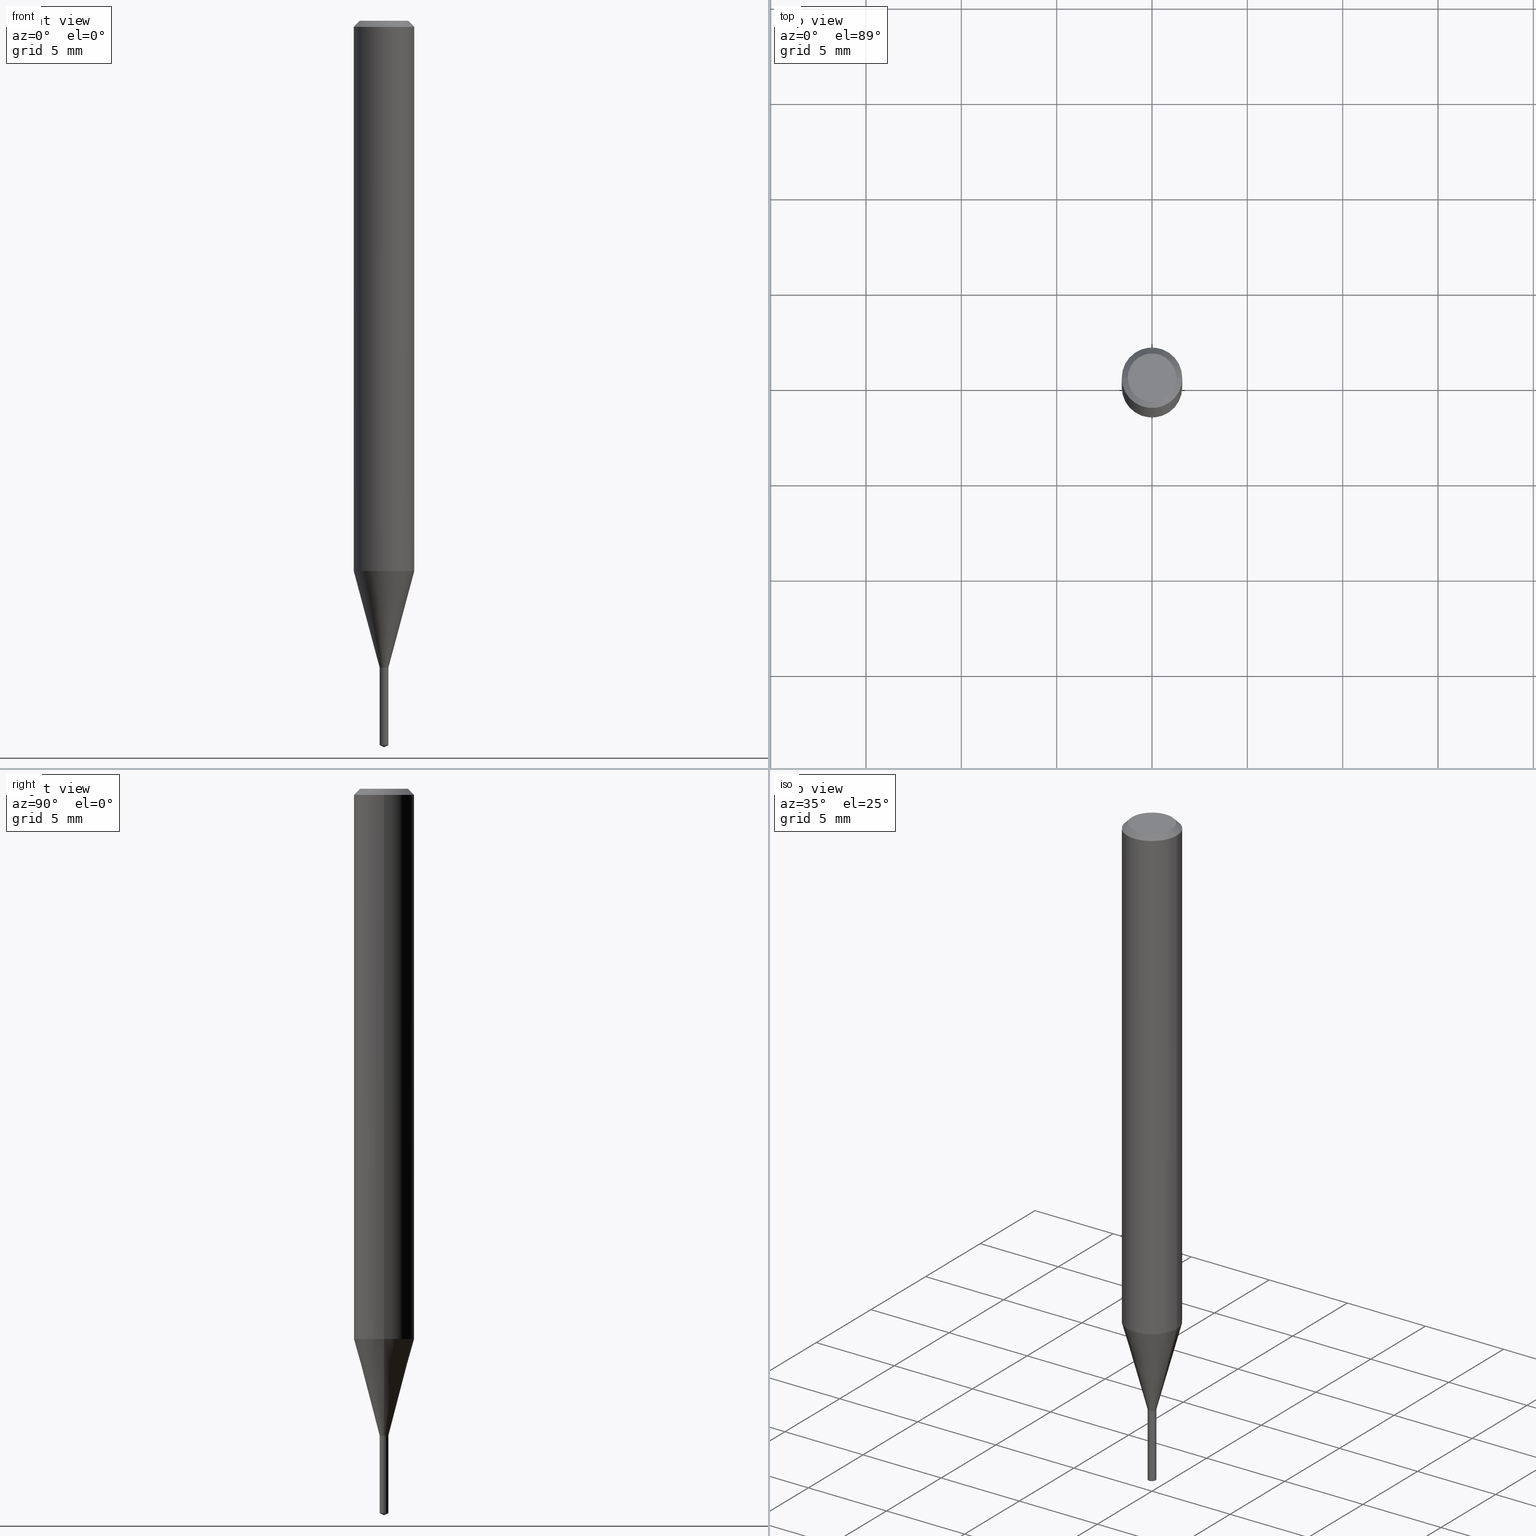
[diagram: canonical four-view strip — front | top / right | iso, engineering-drawing reading convention]
A machine part, canonical four-view strip (front | top / right | iso — engineering-drawing reading convention). The complete STEP part file that produces these views, byte-faithful:
ISO-10303-21;
HEADER;
FILE_DESCRIPTION (( 'STEP AP203' ),
    '1' );
FILE_NAME ('07121.STEP',
    '2024-04-23T19:34:49',
    ( '' ),
    ( '' ),
    'SwSTEP 2.0',
    'SolidWorks 2023',
    '' );
FILE_SCHEMA (( 'CONFIG_CONTROL_DESIGN' ));
ENDSEC;

DATA;
#1 = ADVANCED_FACE ( 'NONE', ( #485 ), #316, .F. ) ;
#2 = FACE_OUTER_BOUND ( 'NONE', #379, .T. ) ;
#3 = CARTESIAN_POINT ( 'NONE',  ( 2.946789911453089913E-29, -4.207235013305990839E-15, -1.205000000000000071 ) ) ;
#4 = ORIENTED_EDGE ( 'NONE', *, *, #130, .T. ) ;
#5 = AXIS2_PLACEMENT_3D ( 'NONE', #149, #284, #111 ) ;
#6 = ORIENTED_EDGE ( 'NONE', *, *, #41, .T. ) ;
#7 = CIRCLE ( 'NONE', #129, 0.06250000000000000000 ) ;
#8 = COORDINATED_UNIVERSAL_TIME_OFFSET ( 5, 0, .BEHIND. ) ;
#9 = DIRECTION ( 'NONE',  ( -2.442064184349959249E-29, 3.496356951090160448E-15, 1.000000000000000000 ) ) ;
#10 = ADVANCED_FACE ( 'NONE', ( #369 ), #194, .T. ) ;
#11 = DIRECTION ( 'NONE',  ( 1.000000000000000000, -6.982962677686266711E-15, 0.000000000000000000 ) ) ;
#12 = DIRECTION ( 'NONE',  ( 0.7071067811865452413, -7.319954787623248157E-15, -0.7071067811865497932 ) ) ;
#13 = DIMENSIONAL_EXPONENTS ( 1.000000000000000000, 0.000000000000000000, 0.000000000000000000, 0.000000000000000000, 0.000000000000000000, 0.000000000000000000, 0.000000000000000000 ) ;
#14 = VECTOR ( 'NONE', #25, 39.37007874015748143 ) ;
#15 = AXIS2_PLACEMENT_3D ( 'NONE', #189, #237, #106 ) ;
#16 = APPROVAL ( #17, 'UNSPECIFIED' ) ;
#17 = APPROVAL_STATUS ( 'not_yet_approved' ) ;
#18 = MANIFOLD_SOLID_BREP ( 'Body-Move/Copy2[2]', #282 ) ;
#19 = AXIS2_PLACEMENT_3D ( 'NONE', #390, #42, #211 ) ;
#20 = LINE ( 'NONE', #403, #361 ) ;
#21 = DIRECTION ( 'NONE',  ( 1.000000000000000000, -6.982962677686270655E-15, 0.000000000000000000 ) ) ;
#22 = CONICAL_SURFACE ( 'NONE', #381, 0.06250000000000000000, 0.7853981633974450594 ) ;
#23 = EDGE_CURVE ( 'NONE', #39, #208, #128, .T. ) ;
#24 = FACE_OUTER_BOUND ( 'NONE', #423, .T. ) ;
#25 = DIRECTION ( 'NONE',  ( -2.442064184349959249E-29, 3.496356951090160842E-15, 1.000000000000000000 ) ) ;
#26 = LINE ( 'NONE', #370, #463 ) ;
#27 = DIRECTION ( 'NONE',  ( -2.445468806185136597E-29, 3.491481338843145583E-15, 1.000000000000000000 ) ) ;
#28 = ORIENTED_EDGE ( 'NONE', *, *, #421, .F. ) ;
#29 = DIRECTION ( 'NONE',  ( 1.000000000000000000, -6.982962677686225690E-15, 0.000000000000000000 ) ) ;
#30 = CARTESIAN_POINT ( 'NONE',  ( 0.000000000000000000, 0.000000000000000000, 0.000000000000000000 ) ) ;
#31 = ORIENTED_EDGE ( 'NONE', *, *, #171, .T. ) ;
#32 = AXIS2_PLACEMENT_3D ( 'NONE', #371, #27, #482 ) ;
#33 = CIRCLE ( 'NONE', #221, 0.008999999999999999320 ) ;
#34 = DIRECTION ( 'NONE',  ( -2.442064184349959249E-29, 3.496356951090160842E-15, 1.000000000000000000 ) ) ;
#35 = ORIENTED_EDGE ( 'NONE', *, *, #130, .F. ) ;
#36 = CALENDAR_DATE ( 2024, 23, 4 ) ;
#37 = CARTESIAN_POINT ( 'NONE',  ( 2.946789911453089913E-29, -4.207235013305990839E-15, -1.205000000000000071 ) ) ;
#38 = DIRECTION ( 'NONE',  ( -2.445468806185136877E-29, 3.491481338843145188E-15, 1.000000000000000000 ) ) ;
#39 = VERTEX_POINT ( 'NONE', #179 ) ;
#40 = LINE ( 'NONE', #153, #251 ) ;
#41 = EDGE_CURVE ( 'NONE', #55, #219, #264, .T. ) ;
#42 = DIRECTION ( 'NONE',  ( -2.445468806185136597E-29, 3.491481338843145583E-15, 1.000000000000000000 ) ) ;
#43 = EDGE_LOOP ( 'NONE', ( #107, #98, #70, #96 ) ) ;
#44 = VECTOR ( 'NONE', #484, 39.37007874015748143 ) ;
#45 = APPLICATION_PROTOCOL_DEFINITION ( 'international standard', 'config_control_design', 1994, #146 ) ;
#46 = CC_DESIGN_DATE_AND_TIME_ASSIGNMENT ( #176, #332, ( #399 ) ) ;
#47 = CARTESIAN_POINT ( 'NONE',  ( 6.394884621844563230E-17, 0.008999999999995792616, -1.205000000000000071 ) ) ;
#48 = PERSON_AND_ORGANIZATION ( #122, #83 ) ;
#49 = CIRCLE ( 'NONE', #114, 0.008499999999999998876 ) ;
#50 = DATE_TIME_ROLE ( 'creation_date' ) ;
#51 = LOCAL_TIME ( 15, 34, 49.00000000000000000, #8 ) ;
#52 = EDGE_CURVE ( 'NONE', #208, #39, #451, .T. ) ;
#53 = CARTESIAN_POINT ( 'NONE',  ( 0.008999999999999999320, -4.726767436525850023E-15, -1.335800000000000098 ) ) ;
#54 = VERTEX_POINT ( 'NONE', #450 ) ;
#55 = VERTEX_POINT ( 'NONE', #102 ) ;
#56 = ADVANCED_FACE ( 'NONE', ( #78 ), #326, .T. ) ;
#57 = APPROVAL_DATE_TIME ( #444, #346 ) ;
#58 = CARTESIAN_POINT ( 'NONE',  ( -0.008999999999999999320, -4.370756176313212753E-15, -1.335800000000000098 ) ) ;
#59 = DIRECTION ( 'NONE',  ( 1.000000000000000000, -6.982962677686266711E-15, 4.876176775795935232E-29 ) ) ;
#60 = AXIS2_PLACEMENT_3D ( 'NONE', #178, #368, #252 ) ;
#61 = FACE_OUTER_BOUND ( 'NONE', #427, .T. ) ;
#62 = ORIENTED_EDGE ( 'NONE', *, *, #398, .T. ) ;
#63 = DIRECTION ( 'NONE',  ( -0.2588190451025280114, 5.211531920934590485E-15, 0.9659258262890662028 ) ) ;
#64 = ORIENTED_EDGE ( 'NONE', *, *, #472, .T. ) ;
#65 = CARTESIAN_POINT ( 'NONE',  ( 3.663096276524938454E-29, -5.244535426635240672E-15, -1.500000000000000222 ) ) ;
#66 = LINE ( 'NONE', #481, #44 ) ;
#67 = ORIENTED_EDGE ( 'NONE', *, *, #89, .T. ) ;
#68 = EDGE_CURVE ( 'NONE', #142, #109, #406, .T. ) ;
#69 = DIRECTION ( 'NONE',  ( -6.982962677686266711E-15, -1.000000000000000000, 3.520397390770291759E-15 ) ) ;
#70 = ORIENTED_EDGE ( 'NONE', *, *, #117, .T. ) ;
#71 = PRODUCT_DEFINITION_SHAPE ( 'NONE', 'NONE',  #139 ) ;
#72 = DIRECTION ( 'NONE',  ( -2.445468806185136597E-29, 3.491481338843145583E-15, 1.000000000000000000 ) ) ;
#73 = AXIS2_PLACEMENT_3D ( 'NONE', #385, #206, #351 ) ;
#74 = DIRECTION ( 'NONE',  ( -1.000000000000000000, 6.982962677686266711E-15, 0.000000000000000000 ) ) ;
#75 = ORIENTED_EDGE ( 'NONE', *, *, #421, .T. ) ;
#76 = CYLINDRICAL_SURFACE ( 'NONE', #355, 0.009000000000000001055 ) ;
#77 = DIRECTION ( 'NONE',  ( -2.445468806185136597E-29, 3.491481338843145583E-15, 1.000000000000000000 ) ) ;
#78 = FACE_OUTER_BOUND ( 'NONE', #116, .T. ) ;
#79 = DIRECTION ( 'NONE',  ( -6.982962677686265133E-15, -1.000000000000000000, 0.000000000000000000 ) ) ;
#80 = DIRECTION ( 'NONE',  ( -2.445468806185136597E-29, 3.491481338843145583E-15, 1.000000000000000000 ) ) ;
#81 = ORIENTED_EDGE ( 'NONE', *, *, #253, .T. ) ;
#82 = PERSON_AND_ORGANIZATION_ROLE ( 'design_owner' ) ;
#83 = ORGANIZATION ( 'UNSPECIFIED', 'UNSPECIFIED', '' ) ;
#84 =( CONVERSION_BASED_UNIT ( 'INCH', #432 ) LENGTH_UNIT ( ) NAMED_UNIT ( #13 ) );
#85 = EDGE_CURVE ( 'NONE', #383, #219, #470, .T. ) ;
#86 = CC_DESIGN_PERSON_AND_ORGANIZATION_ASSIGNMENT ( #48, #82, ( #359 ) ) ;
#87 = ORIENTED_EDGE ( 'NONE', *, *, #459, .F. ) ;
#88 = VECTOR ( 'NONE', #378, 39.37007874015748143 ) ;
#89 = EDGE_CURVE ( 'NONE', #55, #157, #255, .T. ) ;
#90 = ORIENTED_EDGE ( 'NONE', *, *, #398, .F. ) ;
#91 = AXIS2_PLACEMENT_3D ( 'NONE', #319, #386, #69 ) ;
#92 = CONICAL_SURFACE ( 'NONE', #329, 84.42940631927822892, 1.134464013796333548 ) ;
#93 = DIRECTION ( 'NONE',  ( -2.445468806185136597E-29, 3.491481338843145583E-15, 1.000000000000000000 ) ) ;
#94 = EDGE_CURVE ( 'NONE', #219, #383, #181, .T. ) ;
#95 = DIRECTION ( 'NONE',  ( -2.445468806185136597E-29, 3.491481338843145583E-15, 1.000000000000000000 ) ) ;
#96 = ORIENTED_EDGE ( 'NONE', *, *, #123, .F. ) ;
#97 = CARTESIAN_POINT ( 'NONE',  ( 2.945567177049997112E-29, -4.205489272636569336E-15, -1.204500000000000126 ) ) ;
#98 = ORIENTED_EDGE ( 'NONE', *, *, #322, .T. ) ;
#99 = CARTESIAN_POINT ( 'NONE',  ( 3.056836007731441415E-31, -4.364351673553961684E-17, -0.01250000000000008396 ) ) ;
#100 = PERSON_AND_ORGANIZATION ( #122, #83 ) ;
#101 = DIRECTION ( 'NONE',  ( -2.445468806185136597E-29, 3.491481338843145583E-15, 1.000000000000000000 ) ) ;
#102 = CARTESIAN_POINT ( 'NONE',  ( -6.284666409913983768E-17, -0.009000000000005224307, -1.495803231076605400 ) ) ;
#103 = ORIENTED_EDGE ( 'NONE', *, *, #439, .F. ) ;
#104 = EDGE_CURVE ( 'NONE', #142, #375, #285, .T. ) ;
#105 = DIRECTION ( 'NONE',  ( 6.439704144417082418E-15, 0.9063077870366594846, 0.4226182617406786801 ) ) ;
#106 = DIRECTION ( 'NONE',  ( 1.000000000000000000, 0.000000000000000000, 0.000000000000000000 ) ) ;
#107 = ORIENTED_EDGE ( 'NONE', *, *, #132, .F. ) ;
#108 = DIRECTION ( 'NONE',  ( 1.000000000000000000, -6.982962677686279332E-15, 0.000000000000000000 ) ) ;
#109 = VERTEX_POINT ( 'NONE', #286 ) ;
#110 = ORIENTED_EDGE ( 'NONE', *, *, #330, .F. ) ;
#111 = DIRECTION ( 'NONE',  ( 1.000000000000000000, -6.982962677686225690E-15, 0.000000000000000000 ) ) ;
#112 = ORIENTED_EDGE ( 'NONE', *, *, #266, .T. ) ;
#113 = VECTOR ( 'NONE', #356, 39.37007874015748143 ) ;
#114 = AXIS2_PLACEMENT_3D ( 'NONE', #197, #267, #345 ) ;
#115 = LINE ( 'NONE', #456, #88 ) ;
#116 = EDGE_LOOP ( 'NONE', ( #31, #420, #297, #331 ) ) ;
#117 = EDGE_CURVE ( 'NONE', #140, #54, #354, .T. ) ;
#118 = ORIENTED_EDGE ( 'NONE', *, *, #170, .T. ) ;
#119 = ADVANCED_FACE ( 'NONE', ( #317 ), #320, .T. ) ;
#120 = APPLICATION_CONTEXT ( 'configuration controlled 3d designs of mechanical parts and assemblies' ) ;
#121 = CARTESIAN_POINT ( 'NONE',  ( -0.008499999999999998876, -4.146838880766382664E-15, -1.205000000000000071 ) ) ;
#122 = PERSON ( 'UNSPECIFIED', 'UNSPECIFIED', 'UNSPECIFIED', ('UNSPECIFIED'), ('UNSPECIFIED'), ('UNSPECIFIED') ) ;
#123 = EDGE_CURVE ( 'NONE', #299, #54, #40, .T. ) ;
#124 = DIRECTION ( 'NONE',  ( -2.445468806185136597E-29, 3.491481338843145583E-15, 1.000000000000000000 ) ) ;
#125 =( LENGTH_UNIT ( ) NAMED_UNIT ( * ) SI_UNIT ( $, .METRE. ) );
#126 = CC_DESIGN_APPROVAL ( #16, ( #358 ) ) ;
#127 = DATE_AND_TIME ( #204, #51 ) ;
#128 = CIRCLE ( 'NONE', #216, 0.06250000000000013878 ) ;
#129 = AXIS2_PLACEMENT_3D ( 'NONE', #468, #465, #11 ) ;
#130 = EDGE_CURVE ( 'NONE', #109, #142, #334, .T. ) ;
#131 = EDGE_LOOP ( 'NONE', ( #35, #62, #118, #405 ) ) ;
#132 = EDGE_CURVE ( 'NONE', #229, #299, #380, .T. ) ;
#133 = FACE_OUTER_BOUND ( 'NONE', #454, .T. ) ;
#134 = AXIS2_PLACEMENT_3D ( 'NONE', #30, #409, #59 ) ;
#135 = VECTOR ( 'NONE', #63, 39.37007874015748854 ) ;
#136 = ADVANCED_BREP_SHAPE_REPRESENTATION ( '07121', ( #174, #18, #15 ), #298 ) ;
#137 = DIRECTION ( 'NONE',  ( 0.2588190451025280114, 1.565188264969568522E-15, 0.9659258262890662028 ) ) ;
#138 = ORIENTED_EDGE ( 'NONE', *, *, #287, .F. ) ;
#139 = PRODUCT_DEFINITION ( 'UNKNOWN', '', #358, #413 ) ;
#140 = VERTEX_POINT ( 'NONE', #313 ) ;
#141 = DIRECTION ( 'NONE',  ( -2.445468806185136877E-29, 3.491481338843145188E-15, 1.000000000000000000 ) ) ;
#142 = VERTEX_POINT ( 'NONE', #462 ) ;
#143 = PERSON_AND_ORGANIZATION ( #122, #83 ) ;
#144 = CARTESIAN_POINT ( 'NONE',  ( 2.946789911453089913E-29, -4.207235013305990839E-15, -1.205000000000000071 ) ) ;
#145 = CARTESIAN_POINT ( 'NONE',  ( 0.000000000000000000, 0.000000000000000000, 0.000000000000000000 ) ) ;
#146 = APPLICATION_CONTEXT ( 'configuration controlled 3d designs of mechanical parts and assemblies' ) ;
#147 = VECTOR ( 'NONE', #105, 39.37007874015748143 ) ;
#148 = DIRECTION ( 'NONE',  ( -1.000000000000000000, 6.982962677686266711E-15, 0.000000000000000000 ) ) ;
#149 = CARTESIAN_POINT ( 'NONE',  ( 3.266657231302105794E-29, -4.663920772426673528E-15, -1.335800000000000098 ) ) ;
#150 = VERTEX_POINT ( 'NONE', #241 ) ;
#151 = COORDINATED_UNIVERSAL_TIME_OFFSET ( 5, 0, .BEHIND. ) ;
#152 = DIRECTION ( 'NONE',  ( 1.000000000000000000, -6.982962677686266711E-15, 4.876176775795935793E-29 ) ) ;
#153 = CARTESIAN_POINT ( 'NONE',  ( 0.008999999999999999320, -6.284666409917639645E-17, 4.388559098216341408E-31 ) ) ;
#154 = EDGE_LOOP ( 'NONE', ( #67, #278, #163, #310 ) ) ;
#155 = CARTESIAN_POINT ( 'NONE',  ( 3.266657231302105794E-29, -4.663920772426673528E-15, -1.335800000000000098 ) ) ;
#156 = FACE_OUTER_BOUND ( 'NONE', #162, .T. ) ;
#157 = VERTEX_POINT ( 'NONE', #207 ) ;
#158 = AXIS2_PLACEMENT_3D ( 'NONE', #195, #77, #248 ) ;
#159 = CARTESIAN_POINT ( 'NONE',  ( 0.06250000000000000000, -4.800786840909313294E-16, -0.01250000000000008396 ) ) ;
#160 = AXIS2_PLACEMENT_3D ( 'NONE', #412, #364, #340 ) ;
#161 = EDGE_CURVE ( 'NONE', #39, #375, #115, .T. ) ;
#162 = EDGE_LOOP ( 'NONE', ( #226, #4 ) ) ;
#163 = ORIENTED_EDGE ( 'NONE', *, *, #94, .F. ) ;
#164 = DIRECTION ( 'NONE',  ( -2.438088387897960049E-29, 3.491481338843145188E-15, 1.000000000000000000 ) ) ;
#165 = LINE ( 'NONE', #121, #168 ) ;
#166 = CARTESIAN_POINT ( 'NONE',  ( -8.265746106709734507E-48, 1.180129479067563789E-33, 3.380025165646692144E-19 ) ) ;
#167 = CIRCLE ( 'NONE', #158, 0.06250000000000000000 ) ;
#168 = VECTOR ( 'NONE', #389, 39.37007874015748143 ) ;
#169 = UNCERTAINTY_MEASURE_WITH_UNIT (LENGTH_MEASURE( 1.000000000000000082E-05 ), #84, 'distance_accuracy_value', 'NONE');
#170 = EDGE_CURVE ( 'NONE', #372, #375, #167, .T. ) ;
#171 = EDGE_CURVE ( 'NONE', #299, #229, #435, .T. ) ;
#172 = AXIS2_PLACEMENT_3D ( 'NONE', #166, #72, #458 ) ;
#173 = EDGE_CURVE ( 'NONE', #157, #383, #490, .T. ) ;
#174 = MANIFOLD_SOLID_BREP ( 'Body-Move/Copy2[1]', #260 ) ;
#175 = EDGE_LOOP ( 'NONE', ( #103, #112, #353 ) ) ;
#176 = DATE_AND_TIME ( #223, #422 ) ;
#177 = ADVANCED_FACE ( 'NONE', ( #156 ), #198, .F. ) ;
#178 = CARTESIAN_POINT ( 'NONE',  ( 2.946789911453089913E-29, -4.207235013305990839E-15, -1.205000000000000071 ) ) ;
#179 = CARTESIAN_POINT ( 'NONE',  ( -0.06250000000000013878, -3.522705924938723995E-15, -1.136135281795070506 ) ) ;
#180 = ORIENTED_EDGE ( 'NONE', *, *, #266, .F. ) ;
#181 = CIRCLE ( 'NONE', #73, 0.008999999999999999320 ) ;
#182 = AXIS2_PLACEMENT_3D ( 'NONE', #193, #93, #476 ) ;
#183 = APPROVAL_PERSON_ORGANIZATION ( #397, #16, #294 ) ;
#184 = DIRECTION ( 'NONE',  ( 1.000000000000000000, -6.982962677686279332E-15, 0.000000000000000000 ) ) ;
#185 = VERTEX_POINT ( 'NONE', #245 ) ;
#186 = DIRECTION ( 'NONE',  ( -6.982962677686266711E-15, -1.000000000000000000, 0.000000000000000000 ) ) ;
#187 = PERSON_AND_ORGANIZATION ( #122, #83 ) ;
#188 = CARTESIAN_POINT ( 'NONE',  ( 3.671373364528048644E-29, -5.232785201119936018E-15, -1.500000000000000222 ) ) ;
#189 = CARTESIAN_POINT ( 'NONE',  ( 0.000000000000000000, 0.000000000000000000, 0.000000000000000000 ) ) ;
#190 = ORIENTED_EDGE ( 'NONE', *, *, #322, .F. ) ;
#191 = ADVANCED_FACE ( 'NONE', ( #382 ), #349, .T. ) ;
#192 = DIRECTION ( 'NONE',  ( -2.445468806185136597E-29, 3.491481338843145583E-15, 1.000000000000000000 ) ) ;
#193 = CARTESIAN_POINT ( 'NONE',  ( 0.000000000000000000, 0.000000000000000000, 0.000000000000000000 ) ) ;
#194 = CYLINDRICAL_SURFACE ( 'NONE', #244, 0.06250000000000006939 ) ;
#195 = CARTESIAN_POINT ( 'NONE',  ( 3.056836007731441415E-31, -4.364351673553961684E-17, -0.01250000000000008396 ) ) ;
#196 = ORIENTED_EDGE ( 'NONE', *, *, #68, .F. ) ;
#197 = CARTESIAN_POINT ( 'NONE',  ( 2.946789911453089913E-29, -4.207235013305990839E-15, -1.205000000000000071 ) ) ;
#198 = PLANE ( 'NONE',  #209 ) ;
#199 = ORIENTED_EDGE ( 'NONE', *, *, #259, .T. ) ;
#200 = APPROVAL_DATE_TIME ( #323, #367 ) ;
#201 = DIRECTION ( 'NONE',  ( -2.442064184349959249E-29, 3.496356951090160448E-15, 1.000000000000000000 ) ) ;
#202 = DIRECTION ( 'NONE',  ( -1.000000000000000000, 6.982962677686265922E-15, -4.876176775795935793E-29 ) ) ;
#203 = ORIENTED_EDGE ( 'NONE', *, *, #104, .T. ) ;
#204 = CALENDAR_DATE ( 2024, 23, 4 ) ;
#205 = CC_DESIGN_PERSON_AND_ORGANIZATION_ASSIGNMENT ( #143, #308, ( #399 ) ) ;
#206 = DIRECTION ( 'NONE',  ( -2.442064184349959249E-29, 3.496356951090160448E-15, 1.000000000000000000 ) ) ;
#207 = CARTESIAN_POINT ( 'NONE',  ( 6.394884621844558300E-17, 0.008999999999994777802, -1.495803231076605400 ) ) ;
#208 = VERTEX_POINT ( 'NONE', #309 ) ;
#209 = AXIS2_PLACEMENT_3D ( 'NONE', #280, #419, #202 ) ;
#210 = AXIS2_PLACEMENT_3D ( 'NONE', #3, #296, #300 ) ;
#211 = DIRECTION ( 'NONE',  ( 1.000000000000000000, -6.982962677686225690E-15, 0.000000000000000000 ) ) ;
#212 = ORIENTED_EDGE ( 'NONE', *, *, #295, .T. ) ;
#213 = CARTESIAN_POINT ( 'NONE',  ( -0.06250000000000000000, -1.561130115912099878E-15, -0.01250000000000008396 ) ) ;
#214 = PRODUCT_RELATED_PRODUCT_CATEGORY ( 'detail', '', ( #359 ) ) ;
#215 =( NAMED_UNIT ( * ) SI_UNIT ( $, .STERADIAN. ) SOLID_ANGLE_UNIT ( ) );
#216 = AXIS2_PLACEMENT_3D ( 'NONE', #279, #365, #21 ) ;
#217 = CONICAL_SURFACE ( 'NONE', #336, 0.06250000000000000000, 0.7853981633974450594 ) ;
#218 = ADVANCED_FACE ( 'NONE', ( #24 ), #471, .T. ) ;
#219 = VERTEX_POINT ( 'NONE', #274 ) ;
#220 = ADVANCED_FACE ( 'NONE', ( #449 ), #270, .T. ) ;
#221 = AXIS2_PLACEMENT_3D ( 'NONE', #97, #101, #184 ) ;
#222 = EDGE_LOOP ( 'NONE', ( #457, #446, #314, #304 ) ) ;
#223 = CALENDAR_DATE ( 2024, 23, 4 ) ;
#224 = LINE ( 'NONE', #53, #283 ) ;
#225 = ORIENTED_EDGE ( 'NONE', *, *, #123, .T. ) ;
#226 = ORIENTED_EDGE ( 'NONE', *, *, #68, .T. ) ;
#227 = PERSON_AND_ORGANIZATION ( #122, #83 ) ;
#228 = DIRECTION ( 'NONE',  ( 0.7071067811865225927, -2.468850131081995948E-15, 0.7071067811865724417 ) ) ;
#229 = VERTEX_POINT ( 'NONE', #58 ) ;
#230 = DIRECTION ( 'NONE',  ( -2.442064184349959249E-29, 3.496356951090160448E-15, 1.000000000000000000 ) ) ;
#231 = PERSON_AND_ORGANIZATION_ROLE ( 'creator' ) ;
#232 = AXIS2_PLACEMENT_3D ( 'NONE', #303, #230, #186 ) ;
#233 = ADVANCED_FACE ( 'NONE', ( #333 ), #478, .F. ) ;
#234 = CARTESIAN_POINT ( 'NONE',  ( -0.008999999999999999320, -4.599971926208265243E-15, -1.335800000000000098 ) ) ;
#235 = MECHANICAL_CONTEXT ( 'NONE', #120, 'mechanical' ) ;
#236 = FACE_OUTER_BOUND ( 'NONE', #416, .T. ) ;
#237 = DIRECTION ( 'NONE',  ( 0.000000000000000000, 0.000000000000000000, 1.000000000000000000 ) ) ;
#238 = ORIENTED_EDGE ( 'NONE', *, *, #439, .T. ) ;
#239 = CC_DESIGN_PERSON_AND_ORGANIZATION_ASSIGNMENT ( #265, #483, ( #358 ) ) ;
#240 = PLANE ( 'NONE',  #293 ) ;
#241 = CARTESIAN_POINT ( 'NONE',  ( 0.008499999999999998876, -4.266590196066324327E-15, -1.205000000000000071 ) ) ;
#242 = ORIENTED_EDGE ( 'NONE', *, *, #117, .F. ) ;
#243 = COORDINATED_UNIVERSAL_TIME_OFFSET ( 5, 0, .BEHIND. ) ;
#244 = AXIS2_PLACEMENT_3D ( 'NONE', #145, #489, #152 ) ;
#245 = CARTESIAN_POINT ( 'NONE',  ( 3.663096276524939014E-29, -5.244535426635240672E-15, -1.500000000000000222 ) ) ;
#246 = ORIENTED_EDGE ( 'NONE', *, *, #85, .T. ) ;
#247 = CARTESIAN_POINT ( 'NONE',  ( -0.06250000000000000000, 3.927916506198520587E-16, -0.01250000000000008396 ) ) ;
#248 = DIRECTION ( 'NONE',  ( 1.000000000000000000, -6.982962677686266711E-15, 0.000000000000000000 ) ) ;
#249 = ORIENTED_EDGE ( 'NONE', *, *, #173, .F. ) ;
#250 = ORIENTED_EDGE ( 'NONE', *, *, #472, .F. ) ;
#251 = VECTOR ( 'NONE', #38, 39.37007874015748143 ) ;
#252 = DIRECTION ( 'NONE',  ( 1.000000000000000000, -6.982962677686276177E-15, 0.000000000000000000 ) ) ;
#253 = EDGE_CURVE ( 'NONE', #299, #208, #224, .T. ) ;
#254 = LINE ( 'NONE', #393, #256 ) ;
#255 = CIRCLE ( 'NONE', #335, 0.009000000000000001055 ) ;
#256 = VECTOR ( 'NONE', #12, 39.37007874015748143 ) ;
#257 = PERSON_AND_ORGANIZATION ( #122, #83 ) ;
#258 = CALENDAR_DATE ( 2024, 23, 4 ) ;
#259 = EDGE_CURVE ( 'NONE', #54, #140, #33, .T. ) ;
#260 = CLOSED_SHELL ( 'NONE', ( #448, #119, #352, #191, #315 ) ) ;
#261 = CIRCLE ( 'NONE', #160, 0.008499999999999998876 ) ;
#262 = DIRECTION ( 'NONE',  ( -2.442064184349959249E-29, 3.496356951090160448E-15, 1.000000000000000000 ) ) ;
#263 = FACE_OUTER_BOUND ( 'NONE', #374, .T. ) ;
#264 = LINE ( 'NONE', #301, #14 ) ;
#265 = PERSON_AND_ORGANIZATION ( #122, #83 ) ;
#266 = EDGE_CURVE ( 'NONE', #185, #157, #271, .T. ) ;
#267 = DIRECTION ( 'NONE',  ( -2.445468806185136597E-29, 3.491481338843145583E-15, 1.000000000000000000 ) ) ;
#268 = CARTESIAN_POINT ( 'NONE',  ( 0.000000000000000000, 0.000000000000000000, 0.000000000000000000 ) ) ;
#269 = APPROVAL_STATUS ( 'not_yet_approved' ) ;
#270 = CONICAL_SURFACE ( 'NONE', #477, 0.008999999999999999320, 0.2617993877991570129 ) ;
#271 = LINE ( 'NONE', #188, #147 ) ;
#272 = DIRECTION ( 'NONE',  ( 1.000000000000000000, -6.982962677686266711E-15, 4.876176775795935793E-29 ) ) ;
#273 = SECURITY_CLASSIFICATION_LEVEL ( 'unclassified' ) ;
#274 = CARTESIAN_POINT ( 'NONE',  ( -6.284666409914692510E-17, -0.009000000000004206024, -1.205000000000000071 ) ) ;
#275 = ORIENTED_EDGE ( 'NONE', *, *, #85, .F. ) ;
#276 = ADVANCED_FACE ( 'NONE', ( #263 ), #217, .T. ) ;
#277 = DIRECTION ( 'NONE',  ( -2.445468806185136597E-29, 3.491481338843145583E-15, 1.000000000000000000 ) ) ;
#278 = ORIENTED_EDGE ( 'NONE', *, *, #173, .T. ) ;
#279 = CARTESIAN_POINT ( 'NONE',  ( 2.778383391236205405E-29, -3.966795134788787794E-15, -1.136135281795070506 ) ) ;
#280 = CARTESIAN_POINT ( 'NONE',  ( -4.132873053354867254E-48, 5.900647395337818946E-34, 1.690012582823346072E-19 ) ) ;
#281 = ORIENTED_EDGE ( 'NONE', *, *, #330, .T. ) ;
#282 = CLOSED_SHELL ( 'NONE', ( #218, #431, #434, #56, #233, #1, #220, #10, #276, #177, #384, #362 ) ) ;
#283 = VECTOR ( 'NONE', #137, 39.37007874015748854 ) ;
#284 = DIRECTION ( 'NONE',  ( -2.445468806185136597E-29, 3.491481338843145583E-15, 1.000000000000000000 ) ) ;
#285 = LINE ( 'NONE', #247, #113 ) ;
#286 = CARTESIAN_POINT ( 'NONE',  ( 0.04999999999999999584, -4.077247707424184705E-16, 3.380025165673154903E-19 ) ) ;
#287 = EDGE_CURVE ( 'NONE', #229, #39, #408, .T. ) ;
#288 = AXIS2_PLACEMENT_3D ( 'NONE', #155, #124, #430 ) ;
#289 = CC_DESIGN_APPROVAL ( #346, ( #139 ) ) ;
#290 = CARTESIAN_POINT ( 'NONE',  ( 2.946789911453089913E-29, -4.207235013305990839E-15, -1.205000000000000071 ) ) ;
#291 = APPROVAL_DATE_TIME ( #433, #16 ) ;
#292 = VECTOR ( 'NONE', #34, 39.37007874015748143 ) ;
#293 = AXIS2_PLACEMENT_3D ( 'NONE', #144, #376, #441 ) ;
#294 = APPROVAL_ROLE ( '' ) ;
#295 = EDGE_CURVE ( 'NONE', #150, #343, #261, .T. ) ;
#296 = DIRECTION ( 'NONE',  ( -2.442064184349959249E-29, 3.496356951090160448E-15, 1.000000000000000000 ) ) ;
#297 = ORIENTED_EDGE ( 'NONE', *, *, #52, .F. ) ;
#298 =( GEOMETRIC_REPRESENTATION_CONTEXT ( 3 ) GLOBAL_UNCERTAINTY_ASSIGNED_CONTEXT ( ( #169 ) ) GLOBAL_UNIT_ASSIGNED_CONTEXT ( ( #84, #394, #215 ) ) REPRESENTATION_CONTEXT ( 'NONE', 'WORKASPACE' ) );
#299 = VERTEX_POINT ( 'NONE', #339 ) ;
#300 = DIRECTION ( 'NONE',  ( -6.982962677686265133E-15, -1.000000000000000000, 0.000000000000000000 ) ) ;
#301 = CARTESIAN_POINT ( 'NONE',  ( -6.284666409914692510E-17, -0.009000000000004207759, -1.205000000000000071 ) ) ;
#302 = EDGE_CURVE ( 'NONE', #208, #372, #66, .T. ) ;
#303 = CARTESIAN_POINT ( 'NONE',  ( 3.656950066758512976E-29, -5.223986911680156657E-15, -1.495803231076605400 ) ) ;
#304 = ORIENTED_EDGE ( 'NONE', *, *, #302, .F. ) ;
#305 = DIRECTION ( 'NONE',  ( 2.445468806185136597E-29, -3.491481338843145583E-15, -1.000000000000000000 ) ) ;
#306 = APPLICATION_PROTOCOL_DEFINITION ( 'international standard', 'config_control_design', 1994, #120 ) ;
#307 = CYLINDRICAL_SURFACE ( 'NONE', #391, 0.06250000000000006939 ) ;
#308 = PERSON_AND_ORGANIZATION_ROLE ( 'classification_officer' ) ;
#309 = CARTESIAN_POINT ( 'NONE',  ( 0.06250000000000013878, -4.403230302144179464E-15, -1.136135281795070506 ) ) ;
#310 = ORIENTED_EDGE ( 'NONE', *, *, #41, .F. ) ;
#311 = CARTESIAN_POINT ( 'NONE',  ( 2.946789911453089913E-29, -4.207235013305990839E-15, -1.205000000000000071 ) ) ;
#312 = ORIENTED_EDGE ( 'NONE', *, *, #259, .F. ) ;
#313 = CARTESIAN_POINT ( 'NONE',  ( -0.008999999999999999320, -4.370756176313212753E-15, -1.204500000000000126 ) ) ;
#314 = ORIENTED_EDGE ( 'NONE', *, *, #170, .F. ) ;
#315 = ADVANCED_FACE ( 'NONE', ( #236 ), #240, .F. ) ;
#316 = CYLINDRICAL_SURFACE ( 'NONE', #134, 0.008999999999999999320 ) ;
#317 = FACE_OUTER_BOUND ( 'NONE', #175, .T. ) ;
#318 = ORIENTED_EDGE ( 'NONE', *, *, #459, .T. ) ;
#319 = CARTESIAN_POINT ( 'NONE',  ( -9.247706038054002126E-28, 1.324131881542389877E-13, 37.87007874015748143 ) ) ;
#320 = CONICAL_SURFACE ( 'NONE', #91, 84.42940631927822892, 1.134464013796333548 ) ;
#321 = CARTESIAN_POINT ( 'NONE',  ( 2.946789911453089913E-29, -4.207235013305990839E-15, -1.205000000000000071 ) ) ;
#322 = EDGE_CURVE ( 'NONE', #229, #140, #26, .T. ) ;
#323 = DATE_AND_TIME ( #36, #464 ) ;
#324 = CC_DESIGN_DATE_AND_TIME_ASSIGNMENT ( #127, #50, ( #139 ) ) ;
#325 = DIRECTION ( 'NONE',  ( 1.000000000000000000, -6.982962677686265922E-15, 4.876176775795935793E-29 ) ) ;
#326 = CONICAL_SURFACE ( 'NONE', #288, 0.008999999999999999320, 0.2617993877991570129 ) ;
#327 = CONICAL_SURFACE ( 'NONE', #60, 0.008499999999999998876, 0.7853981633974130849 ) ;
#328 = COORDINATED_UNIVERSAL_TIME_OFFSET ( 5, 0, .BEHIND. ) ;
#329 = AXIS2_PLACEMENT_3D ( 'NONE', #404, #262, #445 ) ;
#330 = EDGE_CURVE ( 'NONE', #343, #150, #49, .T. ) ;
#331 = ORIENTED_EDGE ( 'NONE', *, *, #253, .F. ) ;
#332 = DATE_TIME_ROLE ( 'classification_date' ) ;
#333 = FACE_OUTER_BOUND ( 'NONE', #43, .T. ) ;
#334 = CIRCLE ( 'NONE', #461, 0.04999999999999999584 ) ;
#335 = AXIS2_PLACEMENT_3D ( 'NONE', #388, #9, #426 ) ;
#336 = AXIS2_PLACEMENT_3D ( 'NONE', #455, #305, #148 ) ;
#337 = DIRECTION ( 'NONE',  ( -2.445468806185136597E-29, 3.491481338843145583E-15, 1.000000000000000000 ) ) ;
#338 = DIRECTION ( 'NONE',  ( 2.445468806185136597E-29, -3.491481338843145583E-15, -1.000000000000000000 ) ) ;
#339 = CARTESIAN_POINT ( 'NONE',  ( 0.008999999999999999320, -4.726767436525850023E-15, -1.335800000000000098 ) ) ;
#340 = DIRECTION ( 'NONE',  ( 1.000000000000000000, -6.982962677686276177E-15, 0.000000000000000000 ) ) ;
#341 = EDGE_LOOP ( 'NONE', ( #190, #466, #225, #199 ) ) ;
#342 = CARTESIAN_POINT ( 'NONE',  ( 6.394884621843847092E-17, 0.008999999999995792616, -1.205000000000000071 ) ) ;
#343 = VERTEX_POINT ( 'NONE', #373 ) ;
#344 = LOCAL_TIME ( 15, 34, 49.00000000000000000, #328 ) ;
#345 = DIRECTION ( 'NONE',  ( 1.000000000000000000, -6.982962677686276177E-15, 0.000000000000000000 ) ) ;
#346 = APPROVAL ( #438, 'UNSPECIFIED' ) ;
#347 = PERSON_AND_ORGANIZATION_ROLE ( 'creator' ) ;
#348 = DIRECTION ( 'NONE',  ( -6.982962677686265133E-15, -1.000000000000000000, 0.000000000000000000 ) ) ;
#349 = CYLINDRICAL_SURFACE ( 'NONE', #210, 0.009000000000000001055 ) ;
#350 = EDGE_LOOP ( 'NONE', ( #138, #425, #81, #474 ) ) ;
#351 = DIRECTION ( 'NONE',  ( -6.982962677686265133E-15, -1.000000000000000000, 0.000000000000000000 ) ) ;
#352 = ADVANCED_FACE ( 'NONE', ( #133 ), #92, .T. ) ;
#353 = ORIENTED_EDGE ( 'NONE', *, *, #89, .F. ) ;
#354 = CIRCLE ( 'NONE', #475, 0.008999999999999999320 ) ;
#355 = AXIS2_PLACEMENT_3D ( 'NONE', #290, #392, #79 ) ;
#356 = DIRECTION ( 'NONE',  ( -0.7071067811865452413, 2.468850131082233000E-15, -0.7071067811865497932 ) ) ;
#357 = CARTESIAN_POINT ( 'NONE',  ( -8.265746106709734507E-48, 1.180129479067563789E-33, 3.380025165646692144E-19 ) ) ;
#358 = PRODUCT_DEFINITION_FORMATION_WITH_SPECIFIED_SOURCE ( 'ANY', '', #359, .NOT_KNOWN. ) ;
#359 = PRODUCT ( '07121', '07121', '', ( #235 ) ) ;
#360 = EDGE_CURVE ( 'NONE', #150, #54, #20, .T. ) ;
#361 = VECTOR ( 'NONE', #228, 39.37007874015748143 ) ;
#362 = ADVANCED_FACE ( 'NONE', ( #61 ), #327, .T. ) ;
#363 = CALENDAR_DATE ( 2024, 23, 4 ) ;
#364 = DIRECTION ( 'NONE',  ( -2.445468806185136597E-29, 3.491481338843145583E-15, 1.000000000000000000 ) ) ;
#365 = DIRECTION ( 'NONE',  ( -2.445468806185136597E-29, 3.491481338843145583E-15, 1.000000000000000000 ) ) ;
#366 = COORDINATED_UNIVERSAL_TIME_OFFSET ( 5, 0, .BEHIND. ) ;
#367 = APPROVAL ( #269, 'UNSPECIFIED' ) ;
#368 = DIRECTION ( 'NONE',  ( -2.445468806185136597E-29, 3.491481338843145583E-15, 1.000000000000000000 ) ) ;
#369 = FACE_OUTER_BOUND ( 'NONE', #488, .T. ) ;
#370 = CARTESIAN_POINT ( 'NONE',  ( -0.008999999999999999320, 6.394884621840901190E-17, -4.427041581229414594E-31 ) ) ;
#371 = CARTESIAN_POINT ( 'NONE',  ( 2.778383391236205405E-29, -3.966795134788787794E-15, -1.136135281795070506 ) ) ;
#372 = VERTEX_POINT ( 'NONE', #159 ) ;
#373 = CARTESIAN_POINT ( 'NONE',  ( -0.008499999999999998876, -4.144189653592270674E-15, -1.205000000000000071 ) ) ;
#374 = EDGE_LOOP ( 'NONE', ( #90, #196, #203, #318 ) ) ;
#375 = VERTEX_POINT ( 'NONE', #213 ) ;
#376 = DIRECTION ( 'NONE',  ( 2.442064184349958409E-29, -3.496356951090160842E-15, -1.000000000000000000 ) ) ;
#377 = ORIENTED_EDGE ( 'NONE', *, *, #94, .T. ) ;
#378 = DIRECTION ( 'NONE',  ( -2.445468806185136877E-29, 3.491481338843145188E-15, 1.000000000000000000 ) ) ;
#379 = EDGE_LOOP ( 'NONE', ( #437, #110 ) ) ;
#380 = CIRCLE ( 'NONE', #19, 0.008999999999999999320 ) ;
#381 = AXIS2_PLACEMENT_3D ( 'NONE', #99, #338, #74 ) ;
#382 = FACE_OUTER_BOUND ( 'NONE', #479, .T. ) ;
#383 = VERTEX_POINT ( 'NONE', #47 ) ;
#384 = ADVANCED_FACE ( 'NONE', ( #2 ), #469, .F. ) ;
#385 = CARTESIAN_POINT ( 'NONE',  ( 2.946789911453089913E-29, -4.207235013305990839E-15, -1.205000000000000071 ) ) ;
#386 = DIRECTION ( 'NONE',  ( -2.442064184349959249E-29, 3.496356951090160448E-15, 1.000000000000000000 ) ) ;
#387 = CC_DESIGN_PERSON_AND_ORGANIZATION_ASSIGNMENT ( #187, #231, ( #358 ) ) ;
#388 = CARTESIAN_POINT ( 'NONE',  ( 3.656950066758512976E-29, -5.223986911680156657E-15, -1.495803231076605400 ) ) ;
#389 = DIRECTION ( 'NONE',  ( -0.7071067811865225927, 7.493145998870264230E-15, 0.7071067811865724417 ) ) ;
#390 = CARTESIAN_POINT ( 'NONE',  ( 3.266657231302105794E-29, -4.663920772426673528E-15, -1.335800000000000098 ) ) ;
#391 = AXIS2_PLACEMENT_3D ( 'NONE', #268, #192, #272 ) ;
#392 = DIRECTION ( 'NONE',  ( -2.442064184349959249E-29, 3.496356951090160448E-15, 1.000000000000000000 ) ) ;
#393 = CARTESIAN_POINT ( 'NONE',  ( 0.06250000000000000000, -4.724246415962603826E-16, -0.01250000000000008396 ) ) ;
#394 =( NAMED_UNIT ( * ) PLANE_ANGLE_UNIT ( ) SI_UNIT ( $, .RADIAN. ) );
#395 = APPROVAL_PERSON_ORGANIZATION ( #100, #367, #417 ) ;
#396 = AXIS2_PLACEMENT_3D ( 'NONE', #321, #164, #325 ) ;
#397 = PERSON_AND_ORGANIZATION ( #122, #83 ) ;
#398 = EDGE_CURVE ( 'NONE', #109, #372, #254, .T. ) ;
#399 = SECURITY_CLASSIFICATION ( '', '', #273 ) ;
#400 = ORIENTED_EDGE ( 'NONE', *, *, #360, .F. ) ;
#401 = CARTESIAN_POINT ( 'NONE',  ( 3.266657231302105794E-29, -4.663920772426673528E-15, -1.335800000000000098 ) ) ;
#402 = CC_DESIGN_PERSON_AND_ORGANIZATION_ASSIGNMENT ( #227, #347, ( #139 ) ) ;
#403 = CARTESIAN_POINT ( 'NONE',  ( 0.008499999999999998876, -4.266590196066324327E-15, -1.205000000000000071 ) ) ;
#404 = CARTESIAN_POINT ( 'NONE',  ( -9.247706038054002126E-28, 1.324131881542389877E-13, 37.87007874015748143 ) ) ;
#405 = ORIENTED_EDGE ( 'NONE', *, *, #104, .F. ) ;
#406 = CIRCLE ( 'NONE', #172, 0.04999999999999999584 ) ;
#407 = VECTOR ( 'NONE', #487, 39.37007874015748143 ) ;
#408 = LINE ( 'NONE', #234, #135 ) ;
#409 = DIRECTION ( 'NONE',  ( -2.445468806185136597E-29, 3.491481338843145583E-15, 1.000000000000000000 ) ) ;
#410 = ORIENTED_EDGE ( 'NONE', *, *, #23, .T. ) ;
#411 = APPROVAL_ROLE ( '' ) ;
#412 = CARTESIAN_POINT ( 'NONE',  ( 2.946789911453089913E-29, -4.207235013305990839E-15, -1.205000000000000071 ) ) ;
#413 = DESIGN_CONTEXT ( 'detailed design', #146, 'design' ) ;
#414 = ORIENTED_EDGE ( 'NONE', *, *, #360, .T. ) ;
#415 = DIRECTION ( 'NONE',  ( 1.000000000000000000, -6.982962677686265922E-15, 4.876194921942043128E-29 ) ) ;
#416 = EDGE_LOOP ( 'NONE', ( #377, #246 ) ) ;
#417 = APPROVAL_ROLE ( '' ) ;
#418 = FACE_OUTER_BOUND ( 'NONE', #131, .T. ) ;
#419 = DIRECTION ( 'NONE',  ( 2.438088387897960049E-29, -3.491481338843145188E-15, -1.000000000000000000 ) ) ;
#420 = ORIENTED_EDGE ( 'NONE', *, *, #287, .T. ) ;
#421 = EDGE_CURVE ( 'NONE', #157, #55, #436, .T. ) ;
#422 = LOCAL_TIME ( 15, 34, 49.00000000000000000, #366 ) ;
#423 = EDGE_LOOP ( 'NONE', ( #212, #64, #312, #400 ) ) ;
#424 = CARTESIAN_POINT ( 'NONE',  ( 2.945567177049997112E-29, -4.205489272636569336E-15, -1.204500000000000126 ) ) ;
#425 = ORIENTED_EDGE ( 'NONE', *, *, #132, .T. ) ;
#426 = DIRECTION ( 'NONE',  ( -6.982962677686266711E-15, -1.000000000000000000, 0.000000000000000000 ) ) ;
#427 = EDGE_LOOP ( 'NONE', ( #250, #281, #414, #242 ) ) ;
#428 = APPROVAL_PERSON_ORGANIZATION ( #257, #346, #411 ) ;
#429 = CC_DESIGN_APPROVAL ( #367, ( #399 ) ) ;
#430 = DIRECTION ( 'NONE',  ( 1.000000000000000000, -6.982962677686225690E-15, 0.000000000000000000 ) ) ;
#431 = ADVANCED_FACE ( 'NONE', ( #418 ), #22, .T. ) ;
#432 = LENGTH_MEASURE_WITH_UNIT ( LENGTH_MEASURE( 0.02539999999999999897 ), #125 );
#433 = DATE_AND_TIME ( #258, #344 ) ;
#434 = ADVANCED_FACE ( 'NONE', ( #480 ), #307, .T. ) ;
#435 = CIRCLE ( 'NONE', #5, 0.008999999999999999320 ) ;
#436 = CIRCLE ( 'NONE', #232, 0.009000000000000001055 ) ;
#437 = ORIENTED_EDGE ( 'NONE', *, *, #295, .F. ) ;
#438 = APPROVAL_STATUS ( 'not_yet_approved' ) ;
#439 = EDGE_CURVE ( 'NONE', #185, #55, #453, .T. ) ;
#440 = ORIENTED_EDGE ( 'NONE', *, *, #302, .T. ) ;
#441 = DIRECTION ( 'NONE',  ( 6.982962677686265922E-15, 1.000000000000000000, -3.496356951090160842E-15 ) ) ;
#442 = CC_DESIGN_SECURITY_CLASSIFICATION ( #399, ( #358 ) ) ;
#443 = ORIENTED_EDGE ( 'NONE', *, *, #161, .F. ) ;
#444 = DATE_AND_TIME ( #363, #486 ) ;
#445 = DIRECTION ( 'NONE',  ( -6.982962677686266711E-15, -1.000000000000000000, 3.520397390770291759E-15 ) ) ;
#446 = ORIENTED_EDGE ( 'NONE', *, *, #161, .T. ) ;
#447 = DIRECTION ( 'NONE',  ( 1.000000000000000000, -6.982962677686276177E-15, 0.000000000000000000 ) ) ;
#448 = ADVANCED_FACE ( 'NONE', ( #460 ), #76, .T. ) ;
#449 = FACE_OUTER_BOUND ( 'NONE', #350, .T. ) ;
#450 = CARTESIAN_POINT ( 'NONE',  ( 0.008999999999999999320, -4.268335936735745831E-15, -1.204500000000000126 ) ) ;
#451 = CIRCLE ( 'NONE', #32, 0.06250000000000013878 ) ;
#452 = AXIS2_PLACEMENT_3D ( 'NONE', #311, #95, #447 ) ;
#453 = LINE ( 'NONE', #65, #407 ) ;
#454 = EDGE_LOOP ( 'NONE', ( #180, #238, #28 ) ) ;
#455 = CARTESIAN_POINT ( 'NONE',  ( 3.056836007731441415E-31, -4.364351673553961684E-17, -0.01250000000000008396 ) ) ;
#456 = CARTESIAN_POINT ( 'NONE',  ( -0.06250000000000006939, 4.440892098500631092E-16, -3.074334431409319267E-30 ) ) ;
#457 = ORIENTED_EDGE ( 'NONE', *, *, #52, .T. ) ;
#458 = DIRECTION ( 'NONE',  ( 1.000000000000000000, -6.982962677686265922E-15, 4.876194921942043128E-29 ) ) ;
#459 = EDGE_CURVE ( 'NONE', #375, #372, #7, .T. ) ;
#460 = FACE_OUTER_BOUND ( 'NONE', #154, .T. ) ;
#461 = AXIS2_PLACEMENT_3D ( 'NONE', #357, #277, #415 ) ;
#462 = CARTESIAN_POINT ( 'NONE',  ( -0.04999999999999999584, 3.709698922520826725E-16, 3.380025165621512536E-19 ) ) ;
#463 = VECTOR ( 'NONE', #141, 39.37007874015748143 ) ;
#464 = LOCAL_TIME ( 15, 34, 49.00000000000000000, #243 ) ;
#465 = DIRECTION ( 'NONE',  ( -2.445468806185136597E-29, 3.491481338843145583E-15, 1.000000000000000000 ) ) ;
#466 = ORIENTED_EDGE ( 'NONE', *, *, #171, .F. ) ;
#467 = SHAPE_DEFINITION_REPRESENTATION ( #71, #136 ) ;
#468 = CARTESIAN_POINT ( 'NONE',  ( 3.056836007731441415E-31, -4.364351673553961684E-17, -0.01250000000000008396 ) ) ;
#469 = PLANE ( 'NONE',  #396 ) ;
#470 = CIRCLE ( 'NONE', #473, 0.008999999999999999320 ) ;
#471 = CONICAL_SURFACE ( 'NONE', #452, 0.008499999999999998876, 0.7853981633974130849 ) ;
#472 = EDGE_CURVE ( 'NONE', #343, #140, #165, .T. ) ;
#473 = AXIS2_PLACEMENT_3D ( 'NONE', #37, #201, #348 ) ;
#474 = ORIENTED_EDGE ( 'NONE', *, *, #23, .F. ) ;
#475 = AXIS2_PLACEMENT_3D ( 'NONE', #424, #80, #108 ) ;
#476 = DIRECTION ( 'NONE',  ( 1.000000000000000000, -6.982962677686266711E-15, 4.876176775795935232E-29 ) ) ;
#477 = AXIS2_PLACEMENT_3D ( 'NONE', #401, #337, #29 ) ;
#478 = CYLINDRICAL_SURFACE ( 'NONE', #182, 0.008999999999999999320 ) ;
#479 = EDGE_LOOP ( 'NONE', ( #249, #75, #6, #275 ) ) ;
#480 = FACE_OUTER_BOUND ( 'NONE', #222, .T. ) ;
#481 = CARTESIAN_POINT ( 'NONE',  ( 0.06250000000000006939, -4.364351673553921624E-16, 3.047610484872463374E-30 ) ) ;
#482 = DIRECTION ( 'NONE',  ( 1.000000000000000000, -6.982962677686270655E-15, 0.000000000000000000 ) ) ;
#483 = PERSON_AND_ORGANIZATION_ROLE ( 'design_supplier' ) ;
#484 = DIRECTION ( 'NONE',  ( -2.445468806185136877E-29, 3.491481338843145188E-15, 1.000000000000000000 ) ) ;
#485 = FACE_OUTER_BOUND ( 'NONE', #341, .T. ) ;
#486 = LOCAL_TIME ( 15, 34, 49.00000000000000000, #151 ) ;
#487 = DIRECTION ( 'NONE',  ( -6.328713451373426177E-15, -0.9063077870366565980, 0.4226182617406850084 ) ) ;
#488 = EDGE_LOOP ( 'NONE', ( #443, #410, #440, #87 ) ) ;
#489 = DIRECTION ( 'NONE',  ( -2.445468806185136597E-29, 3.491481338843145583E-15, 1.000000000000000000 ) ) ;
#490 = LINE ( 'NONE', #342, #292 ) ;
ENDSEC;
END-ISO-10303-21;
